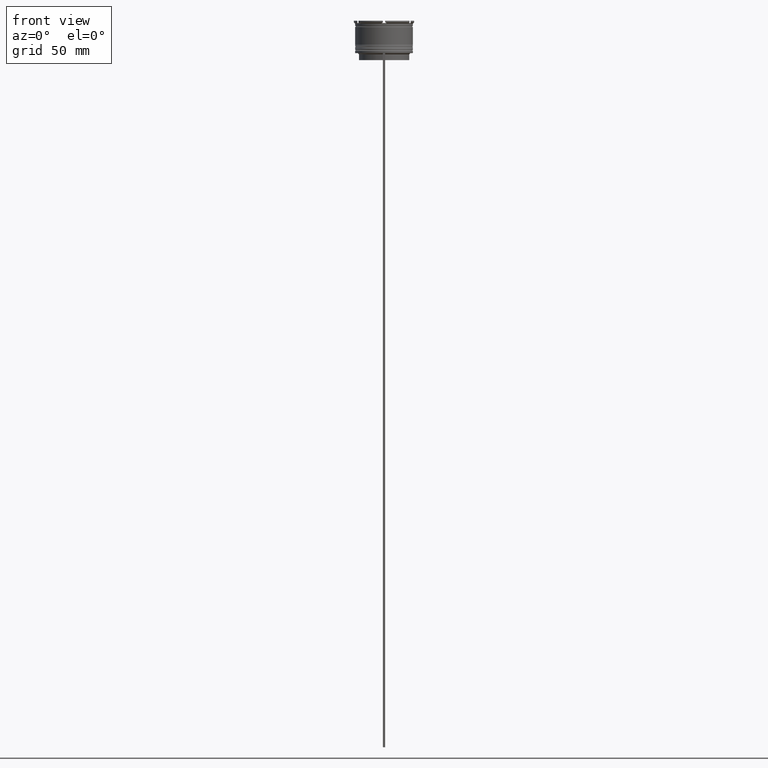
[diagram: clean part render]
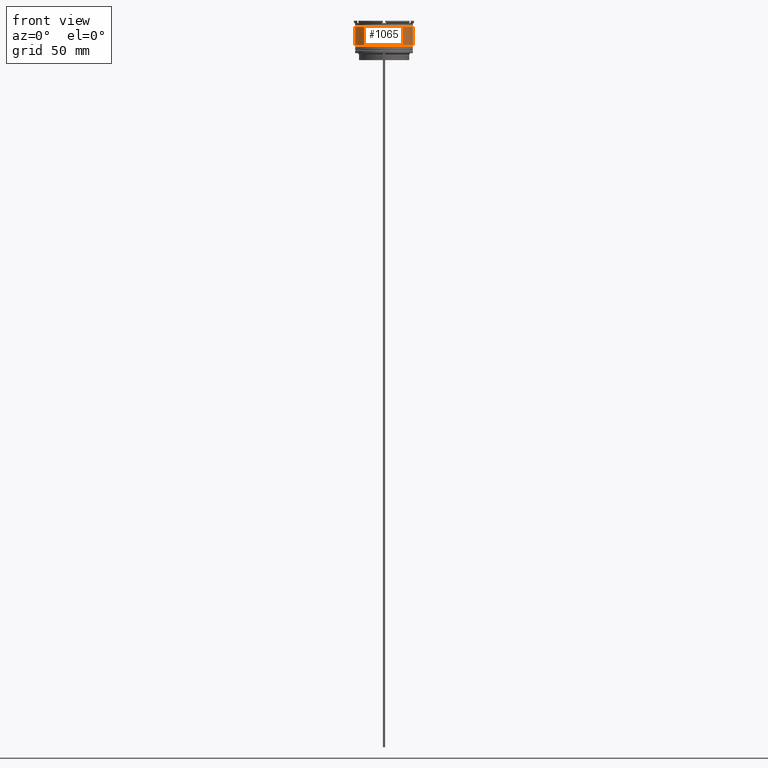
[diagram: same view with one face highlighted and labeled with its STEP entity id]
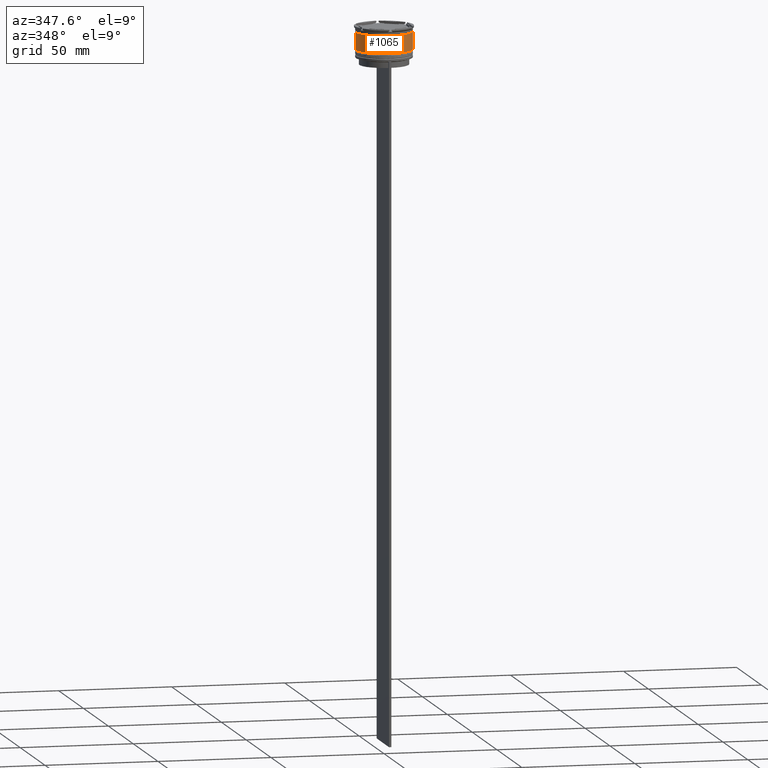
[diagram: same view with one face highlighted and labeled with its STEP entity id]
A machine part, front view. The second image highlights one B-rep face of the part: STEP entity #1065.
A second angle (auxiliary view) of the same face is appended — the face is thin or edge-on in the first view.
In plain terms, the highlighted cylindrical surface (edge-blend (fillet) strip) has radius 12.5 mm, axis along (-0, -0, 1).
Its self-contained STEP definition (entity closure, byte-faithful):
#46 = ORIENTED_EDGE ( 'NONE', *, *, #2787, .F. ) ;
#89 = CARTESIAN_POINT ( 'NONE',  ( -12.49999999999999822, 1.530808498934191324E-15, -2.699999999999999289 ) ) ;
#179 = EDGE_CURVE ( 'NONE', #2570, #2364, #856, .T. ) ;
#206 = ORIENTED_EDGE ( 'NONE', *, *, #179, .F. ) ;
#216 = AXIS2_PLACEMENT_3D ( 'NONE', #755, #1636, #1869 ) ;
#235 = VERTEX_POINT ( 'NONE', #1953 ) ;
#304 = CARTESIAN_POINT ( 'NONE',  ( 0.000000000000000000, 0.000000000000000000, -10.50000000000000178 ) ) ;
#419 = LINE ( 'NONE', #2869, #1386 ) ;
#447 = EDGE_CURVE ( 'NONE', #235, #2364, #1638, .T. ) ;
#503 = EDGE_CURVE ( 'NONE', #1921, #235, #2719, .T. ) ;
#755 = CARTESIAN_POINT ( 'NONE',  ( 0.000000000000000000, 0.000000000000000000, 0.000000000000000000 ) ) ;
#765 = VECTOR ( 'NONE', #1685, 1000.000000000000000 ) ;
#772 = DIRECTION ( 'NONE',  ( 1.000000000000000000, 0.000000000000000000, 0.000000000000000000 ) ) ;
#856 = CIRCLE ( 'NONE', #2482, 12.49999999999999822 ) ;
#861 = AXIS2_PLACEMENT_3D ( 'NONE', #304, #1248, #772 ) ;
#1000 = CARTESIAN_POINT ( 'NONE',  ( 12.50000000000000000, 0.000000000000000000, 0.000000000000000000 ) ) ;
#1065 = ADVANCED_FACE ( 'NONE', ( #2082 ), #1858, .T. ) ;
#1248 = DIRECTION ( 'NONE',  ( -0.000000000000000000, -0.000000000000000000, 1.000000000000000000 ) ) ;
#1386 = VECTOR ( 'NONE', #1775, 1000.000000000000000 ) ;
#1457 = ORIENTED_EDGE ( 'NONE', *, *, #503, .T. ) ;
#1636 = DIRECTION ( 'NONE',  ( -0.000000000000000000, -0.000000000000000000, 1.000000000000000000 ) ) ;
#1638 = LINE ( 'NONE', #1000, #765 ) ;
#1682 = ORIENTED_EDGE ( 'NONE', *, *, #447, .T. ) ;
#1685 = DIRECTION ( 'NONE',  ( -0.000000000000000000, -0.000000000000000000, 1.000000000000000000 ) ) ;
#1717 = DIRECTION ( 'NONE',  ( 1.000000000000000000, 0.000000000000000000, 0.000000000000000000 ) ) ;
#1775 = DIRECTION ( 'NONE',  ( -0.000000000000000000, -0.000000000000000000, 1.000000000000000000 ) ) ;
#1778 = CARTESIAN_POINT ( 'NONE',  ( -12.50000000000000355, 1.530808498934191916E-15, -10.50000000000000178 ) ) ;
#1858 = CYLINDRICAL_SURFACE ( 'NONE', #216, 12.50000000000000000 ) ;
#1869 = DIRECTION ( 'NONE',  ( 1.000000000000000000, 0.000000000000000000, 0.000000000000000000 ) ) ;
#1921 = VERTEX_POINT ( 'NONE', #1778 ) ;
#1941 = CARTESIAN_POINT ( 'NONE',  ( 0.000000000000000000, 0.000000000000000000, -2.699999999999999289 ) ) ;
#1953 = CARTESIAN_POINT ( 'NONE',  ( 12.50000000000000178, 0.000000000000000000, -10.50000000000000178 ) ) ;
#1983 = CARTESIAN_POINT ( 'NONE',  ( 12.49999999999999822, 0.000000000000000000, -2.699999999999999289 ) ) ;
#2082 = FACE_OUTER_BOUND ( 'NONE', #2130, .T. ) ;
#2130 = EDGE_LOOP ( 'NONE', ( #46, #1457, #1682, #206 ) ) ;
#2188 = DIRECTION ( 'NONE',  ( -0.000000000000000000, -0.000000000000000000, 1.000000000000000000 ) ) ;
#2364 = VERTEX_POINT ( 'NONE', #1983 ) ;
#2482 = AXIS2_PLACEMENT_3D ( 'NONE', #1941, #2188, #1717 ) ;
#2570 = VERTEX_POINT ( 'NONE', #89 ) ;
#2719 = CIRCLE ( 'NONE', #861, 12.50000000000000178 ) ;
#2787 = EDGE_CURVE ( 'NONE', #1921, #2570, #419, .T. ) ;
#2869 = CARTESIAN_POINT ( 'NONE',  ( -12.50000000000000000, 1.530808498934191521E-15, 0.000000000000000000 ) ) ;